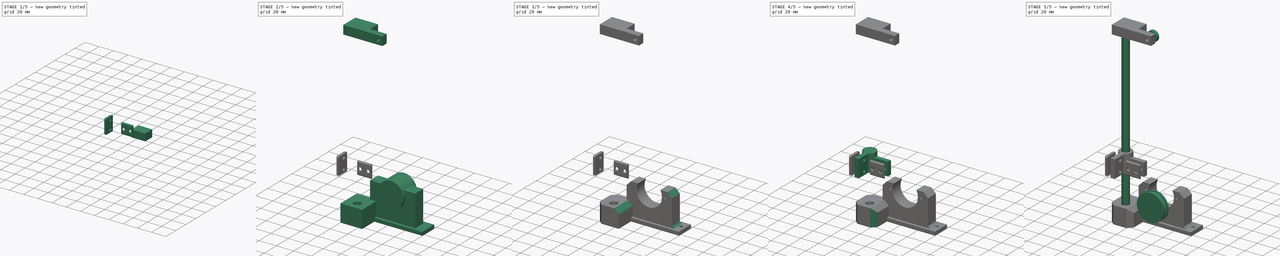
[diagram: build sequence overview — one tinted view per stage of 5, left to right]
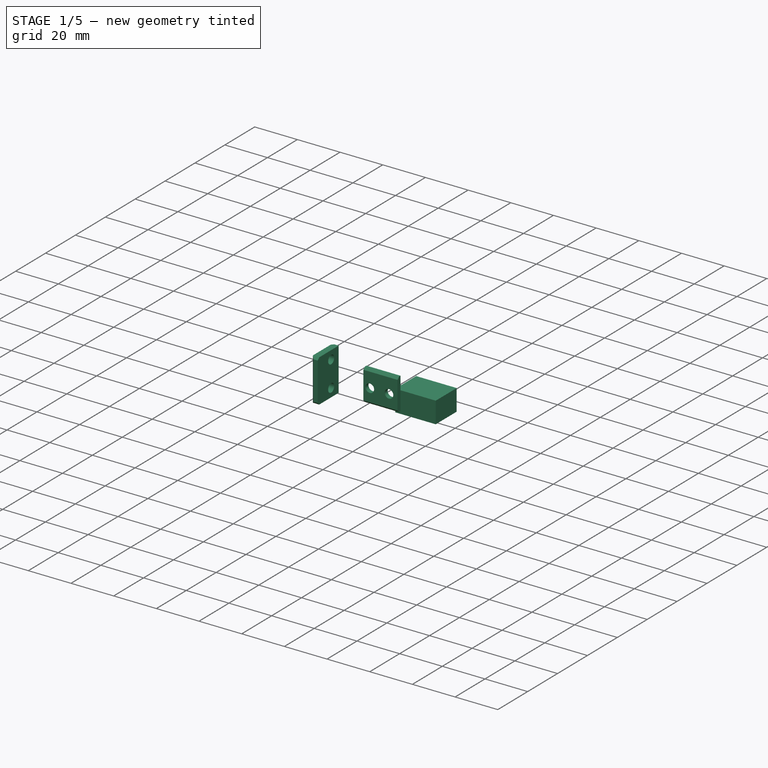
[diagram: stage 1 of 5 — iso view after this stage's code; geometry added in this stage tinted green]
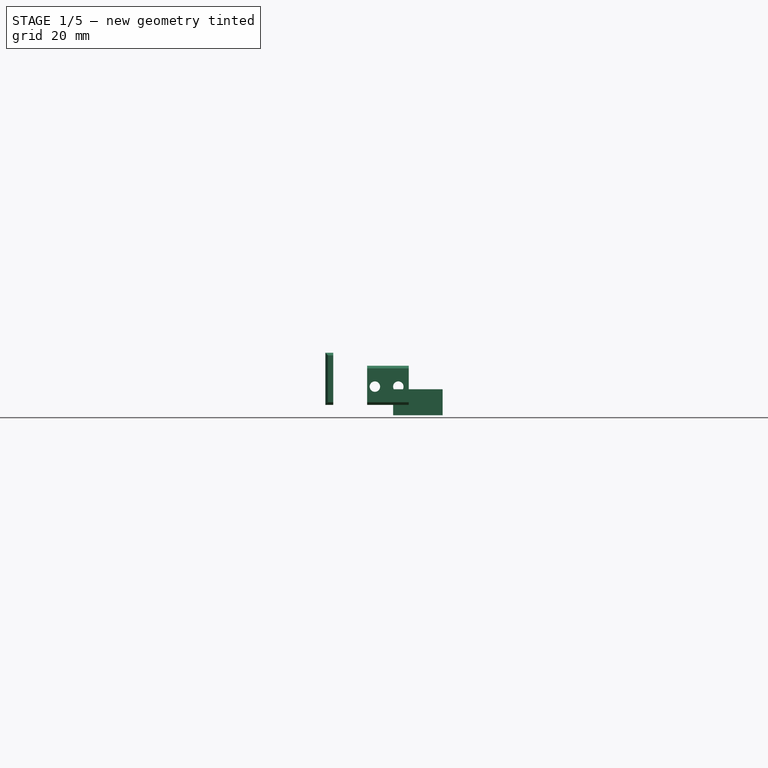
[diagram: stage 1 of 5 — front view after this stage's code; geometry added in this stage tinted green]
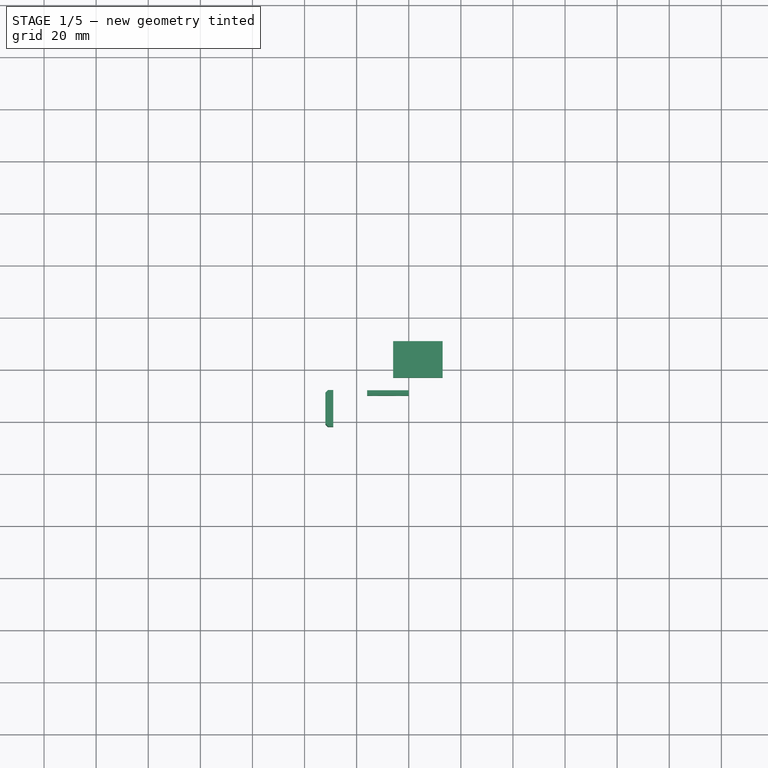
[diagram: stage 1 of 5 — top view after this stage's code; geometry added in this stage tinted green]
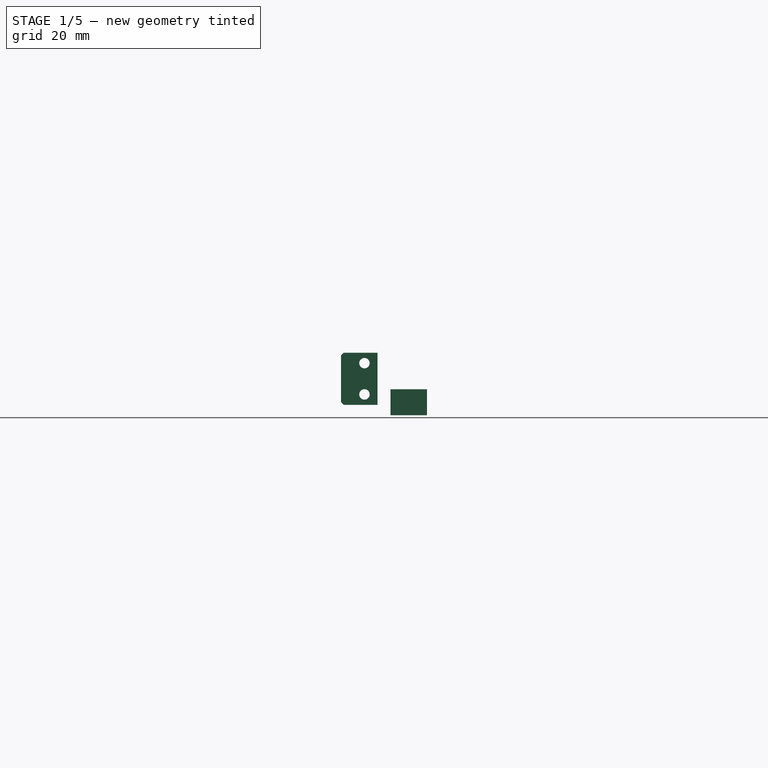
[diagram: stage 1 of 5 — right view after this stage's code; geometry added in this stage tinted green]
FCSTD DOCUMENT  (FreeCAD 0.15R4671 (Git))
Label: apolo_11_v2
License: All rights reserved
LicenseURL: http://es.wikipedia.org/wiki/Todos_los_derechos_reservados
objects: Part::Cylinder×25, Part::Cut×13, Part::Chamfer×13, Part::Box×9, Part::MultiFuse×8, Part::Feature×1, Sketcher::SketchObject×1, Part::Extrusion×1, App::DocumentObjectGroup×1
note: 71 computed .brp shape members not serialized (recipe doc carries the construction recipe); baked Part::Feature solids carry a one-line shape summary decoded from their .brp

FEATURE [Part::Box] Box009  label="Cubo009"
  Height = 10
  Length = 19
  Placement = pos=(74,-43,17) rot=(0,0,1;0rad)
  Width = 14
FEATURE [Part::Box] Box013  label="Cubo013"
  Height = 15
  Length = 16
  Placement = pos=(64,-43,23) rot=(0,0,1;0rad)
  Width = 2
FEATURE [Part::Cylinder] Cylinder051  label="Cilindro048"
  Angle = 360
  Height = 10
  Placement = pos=(67,-37,30) rot=(1,0,0;1.5708rad)
  Radius = 2
FEATURE [Part::Cylinder] Cylinder052  label="Cilindro049"
  Angle = 360
  Height = 10
  Placement = pos=(76,-37,30) rot=(1,0,0;1.5708rad)
  Radius = 2
FEATURE [Part::MultiFuse] Fusion012
  Shapes = -> [Cylinder051,Cylinder052]
FEATURE [Part::Cut] Cut040  label="presa1"
  Base = -> Box013
  Placement = pos=(0,-7,-2) rot=(0,0,1;0rad)
  Tool = -> Fusion012
FEATURE [Part::Box] Box014  label="Cubo014"
  Height = 20
  Length = 14
  Placement = pos=(55,-48,21) rot=(0,0,-1;1.5708rad)
  Width = 3
FEATURE [Part::Cylinder] Cylinder053  label="Cilindro050"
  Angle = 360
  Height = 10
  Placement = pos=(63,-53,25) rot=(0.57735,-0.57735,-0.57735;2.0944rad)
  Radius = 2
FEATURE [Part::Cylinder] Cylinder054  label="Cilindro051"
  Angle = 360
  Height = 10
  Placement = pos=(63,-53,37) rot=(0.57735,-0.57735,-0.57735;2.0944rad)
  Radius = 2
FEATURE [Part::MultiFuse] Fusion013
  Shapes = -> [Cylinder054,Cylinder053]
FEATURE [Part::Cut] Cut041  label="presa2"
  Base = -> Box014
  Placement = pos=(-7,0,0) rot=(0,0,1;0rad)
  Tool = -> Fusion013
FEATURE [Part::Chamfer] Chamfer015
  Base = -> Cut041
  Edges = 2 edges r=1: [Edge11,Edge16]
FEATURE [Part::Chamfer] Chamfer016  label="presa003"
  Base = -> Cut040
  Edges = 2 edges r=1: [Edge5,Edge7]
FEATURE [Part::Chamfer] Chamfer017  label="presa004"
  Base = -> Chamfer015
  Edges = 2 edges r=1: [Edge3,Edge4]
FEATURE [App::DocumentObjectGroup] Grupo003
  Group = -> [Compound003,Cut024,Chamfer005,Cylinder039,Cut034,Chamfer014,Cut039,Chamfer016,Chamfer017]
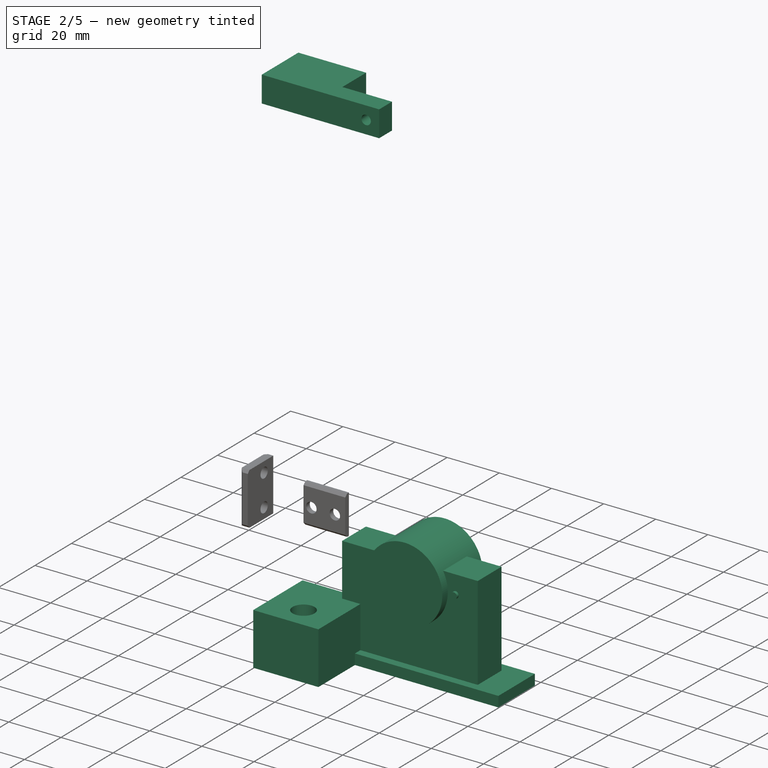
[diagram: stage 2 of 5 — iso view after this stage's code; geometry added in this stage tinted green]
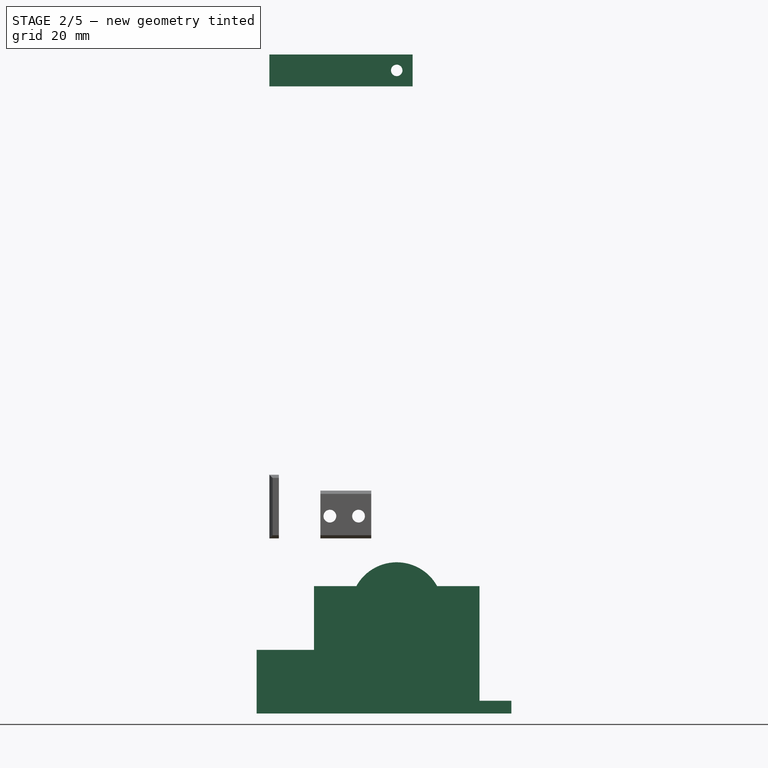
[diagram: stage 2 of 5 — front view after this stage's code; geometry added in this stage tinted green]
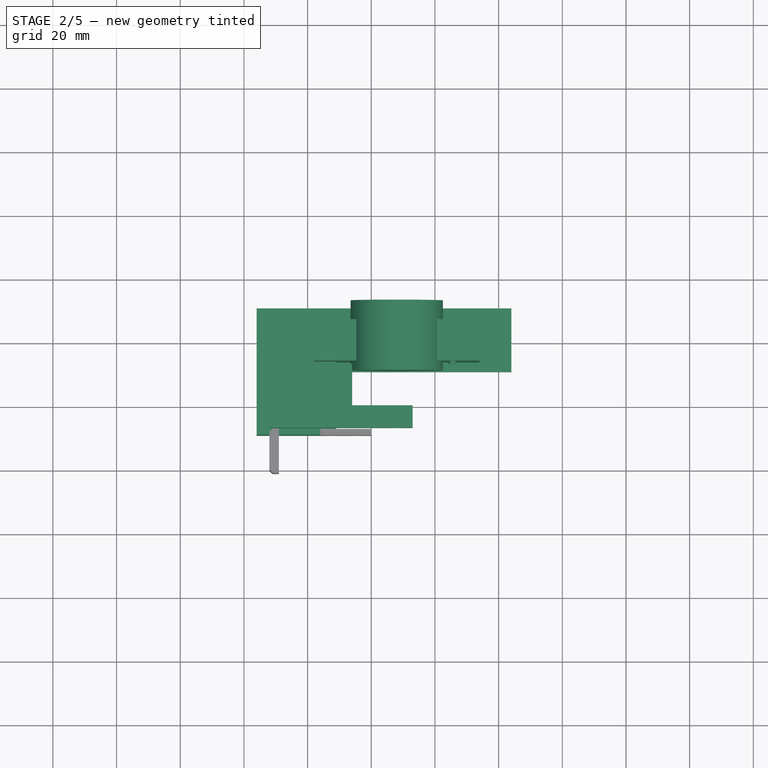
[diagram: stage 2 of 5 — top view after this stage's code; geometry added in this stage tinted green]
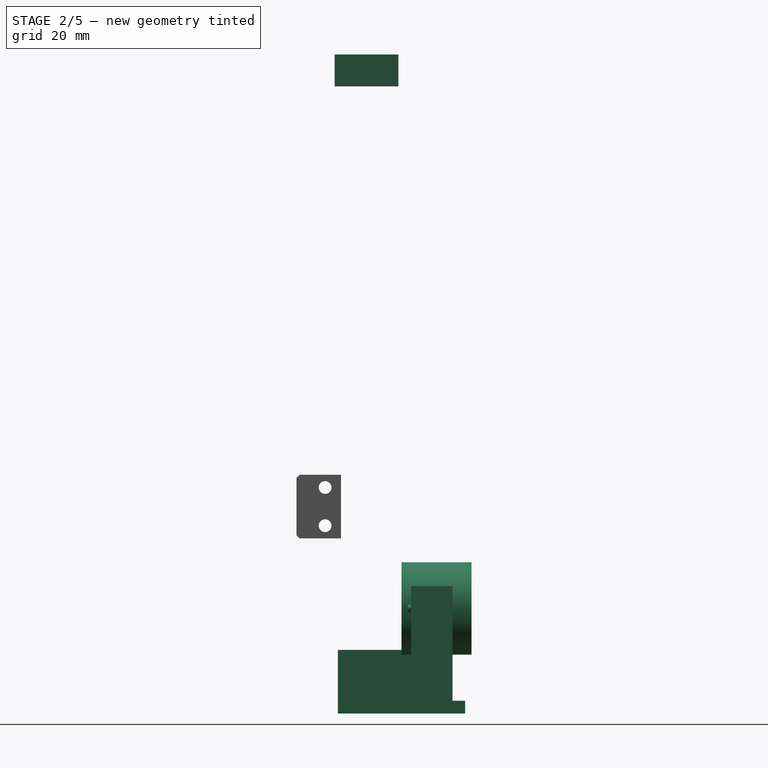
[diagram: stage 2 of 5 — right view after this stage's code; geometry added in this stage tinted green]
FEATURE [Part::Box] Box006  label="Cubo006"
  Height = 40
  Length = 52
  Placement = pos=(62,-26,-34) rot=(0,0,1;0rad)
  Width = 13
FEATURE [Part::Box] Box007  label="Cubo007"
  Height = 20
  Length = 25
  Placement = pos=(44,-49,-34) rot=(0,0,1;0rad)
  Width = 27
FEATURE [Part::Cylinder] Cylinder035  label="Cilindro032"
  Angle = 360
  Height = 200
  Placement = pos=(57,-40,-29) rot=(0,0,1;0rad)
  Radius = 4.2
FEATURE [Part::Cut] Cut028
  Base = -> Box007
  Tool = -> Cylinder035
FEATURE [Part::Box] Box008  label="Cubo008"
  Height = 10
  Length = 45
  Placement = pos=(48,-50,17) rot=(0,0,1;0rad)
  Width = 20
FEATURE [Part::Cylinder] Cylinder037  label="Cilindro034"
  Angle = 360
  Height = 21
  Placement = pos=(88,-32,22) rot=(1,0,0;1.5708rad)
  Radius = 1.8
FEATURE [Part::Cylinder] Cylinder040  label="Cilindro037"
  Angle = 360
  Height = 200
  Placement = pos=(57,-40,-29) rot=(0,0,1;0rad)
  Radius = 4.2
FEATURE [Part::Box] Box012  label="Cubo012"
  Height = 4
  Length = 80
  Placement = pos=(44,-29,-34) rot=(0,0,1;0rad)
  Width = 20
FEATURE [Part::Cylinder] Cylinder049  label="Cilindro046"
  Angle = 360
  Height = 10
  Placement = pos=(105.5,-17,-1) rot=(1,0,0;1.5708rad)
  Radius = 1.2
FEATURE [Part::MultiFuse] Fusion011
  Shapes = -> [Cut028,Box006,Box012]
FEATURE [Part::Cylinder] Cylinder050  label="Cilindro047"
  Angle = 360
  Height = 22
  Placement = pos=(88,-7,-1) rot=(1,0,0;1.5708rad)
  Radius = 14.5
FEATURE [Part::Cut] Cut037
  Base = -> Box008
  Tool = -> Box009
FEATURE [Part::Cut] Cut038
  Base = -> Cut037
  Placement = pos=(0,0,146) rot=(0,0,1;0rad)
  Tool = -> Cylinder037
FEATURE [Part::Cut] Cut039  label="parte superior"
  Base = -> Cut038
  Tool = -> Cylinder040
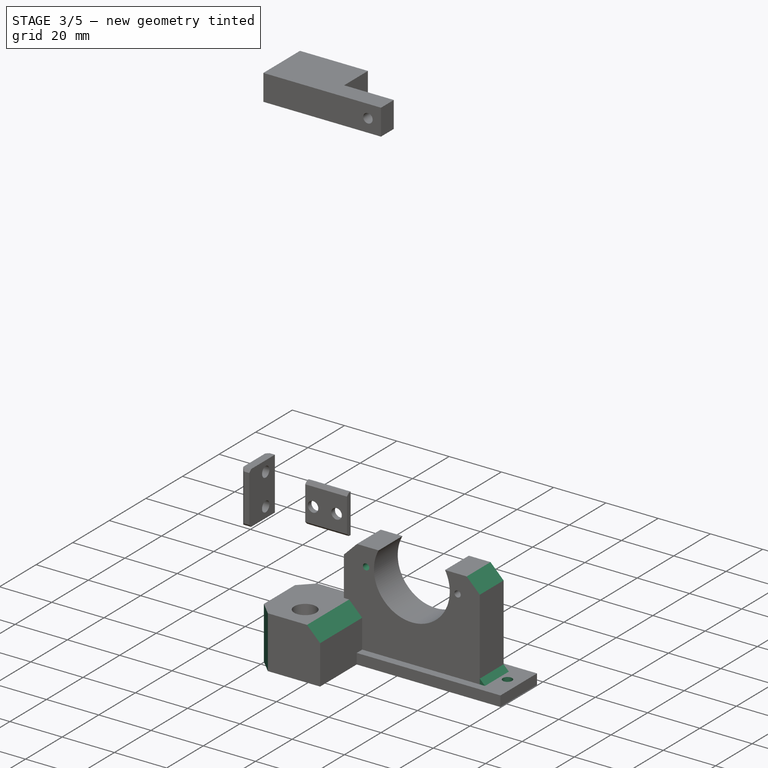
[diagram: stage 3 of 5 — iso view after this stage's code; geometry added in this stage tinted green]
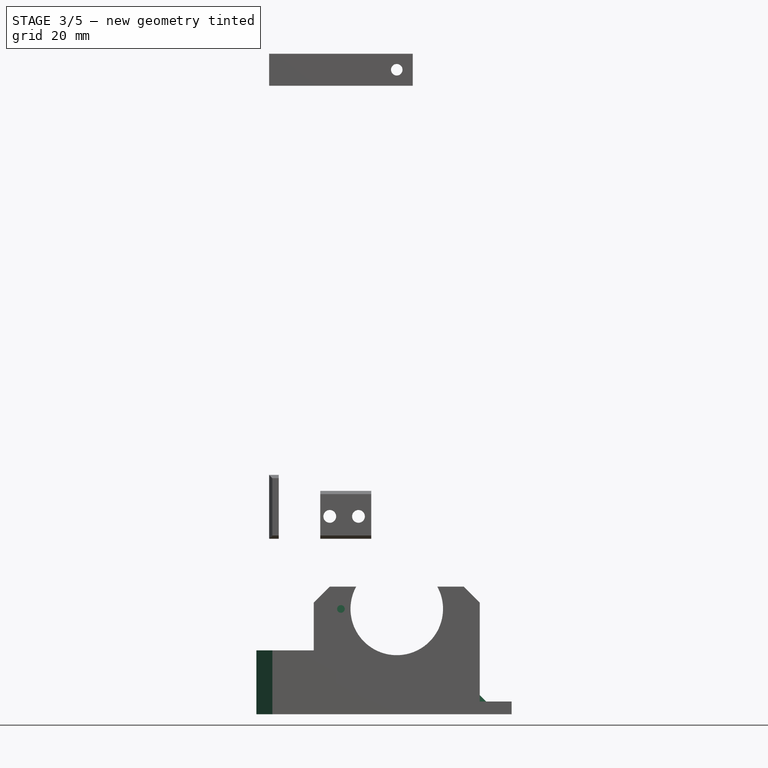
[diagram: stage 3 of 5 — front view after this stage's code; geometry added in this stage tinted green]
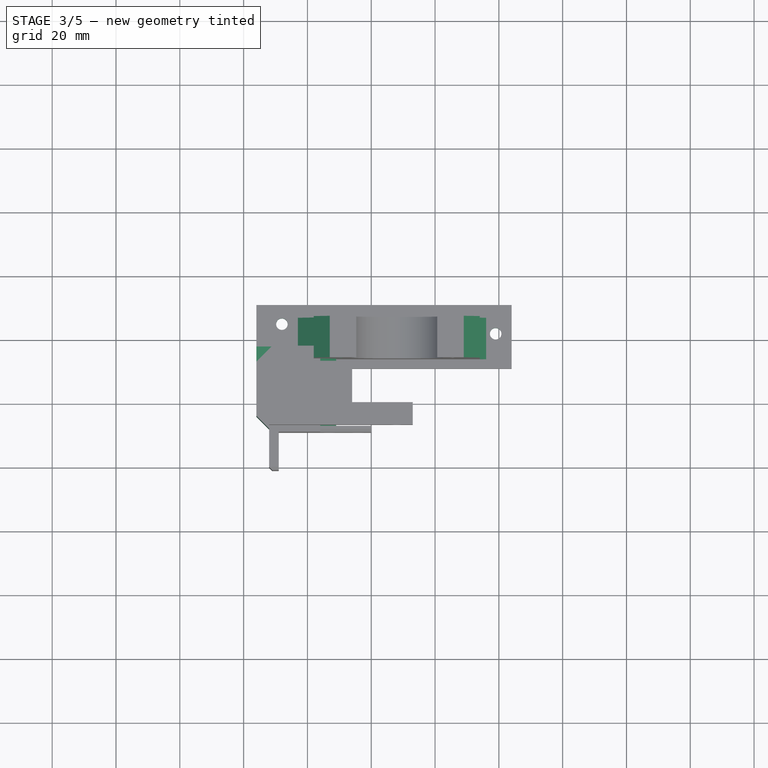
[diagram: stage 3 of 5 — top view after this stage's code; geometry added in this stage tinted green]
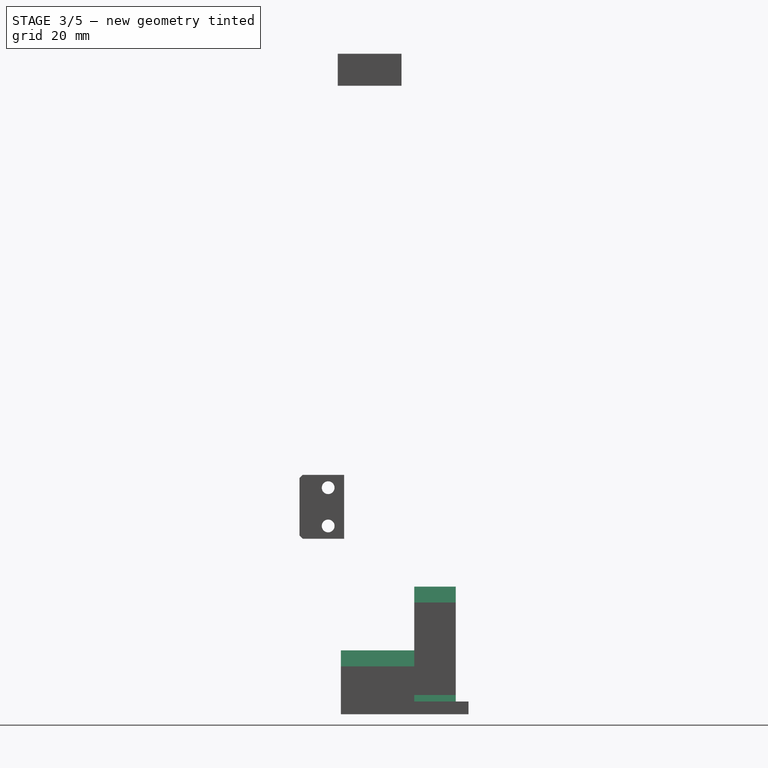
[diagram: stage 3 of 5 — right view after this stage's code; geometry added in this stage tinted green]
FEATURE [Part::Cylinder] Cylinder046  label="Cilindro043"
  Angle = 360
  Height = 10
  Placement = pos=(119,-18,-35) rot=(0,0,1;0rad)
  Radius = 1.8
FEATURE [Part::Cylinder] Cylinder047  label="Cilindro044"
  Angle = 360
  Height = 10
  Placement = pos=(52,-15,-35) rot=(0,0,1;0rad)
  Radius = 1.8
FEATURE [Part::Cylinder] Cylinder048  label="Cilindro045"
  Angle = 360
  Height = 10
  Placement = pos=(70.5,-17,-1) rot=(1,0,0;1.5708rad)
  Radius = 1.2
FEATURE [Part::MultiFuse] Fusion010
  Shapes = -> [Cylinder046,Cylinder047,Cylinder048,Cylinder049]
FEATURE [Part::Cut] Cut035
  Base = -> Fusion011
  Tool = -> Fusion010
FEATURE [Part::Cut] Cut036
  Base = -> Cut035
  Tool = -> Cylinder050
FEATURE [Part::Chamfer] Chamfer007
  Base = -> Cut036
  Edges = 1 edges r=5: [Edge32]
FEATURE [Part::Chamfer] Chamfer008
  Base = -> Chamfer007
  Edges = 1 edges r=5: [Edge40]
FEATURE [Part::Chamfer] Chamfer009
  Base = -> Chamfer008
  Edges = 1 edges r=2: [Edge8]
FEATURE [Part::Chamfer] Chamfer010
  Base = -> Chamfer009
  Edges = 1 edges r=5: [Edge39]
FEATURE [Part::Chamfer] Chamfer011
  Base = -> Chamfer010
  Edges = 1 edges r=5: [Edge27]
FEATURE [Part::Chamfer] Chamfer012
  Base = -> Chamfer011
  Edges = 1 edges r=5: [Edge52]
FEATURE [Part::Chamfer] Chamfer013
  Base = -> Chamfer012
  Edges = 1 edges r=5: [Edge46]
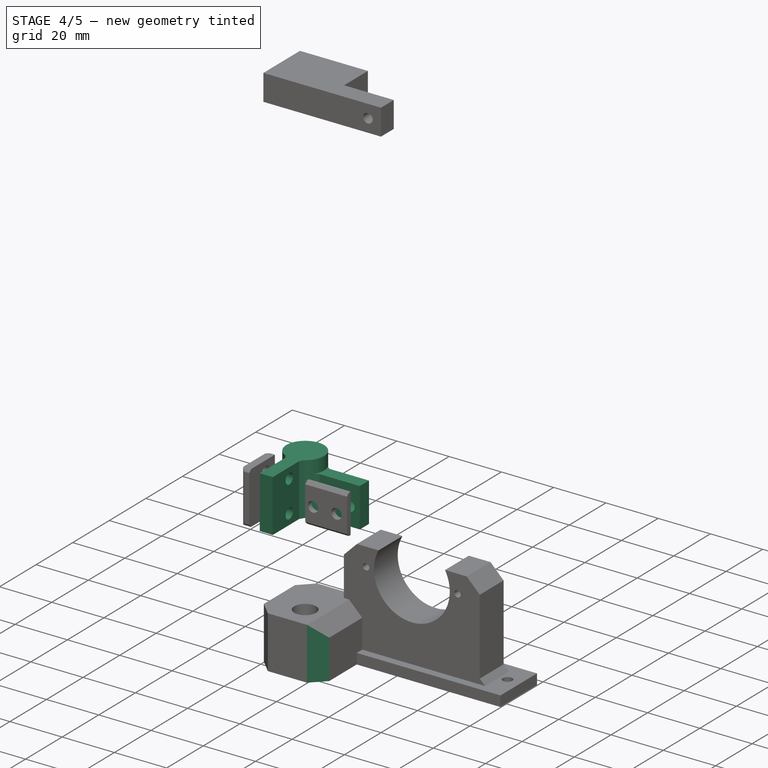
[diagram: stage 4 of 5 — iso view after this stage's code; geometry added in this stage tinted green]
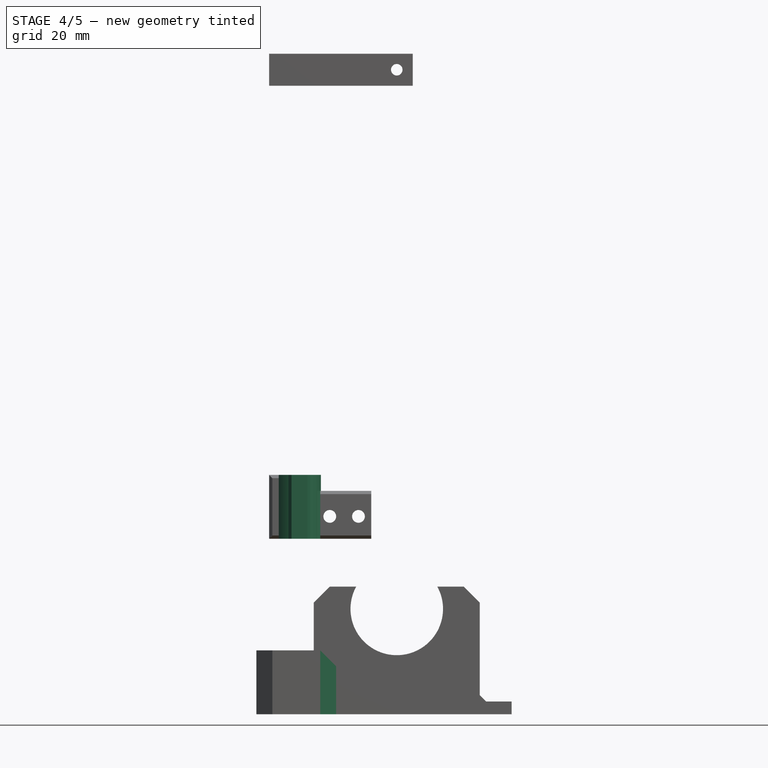
[diagram: stage 4 of 5 — front view after this stage's code; geometry added in this stage tinted green]
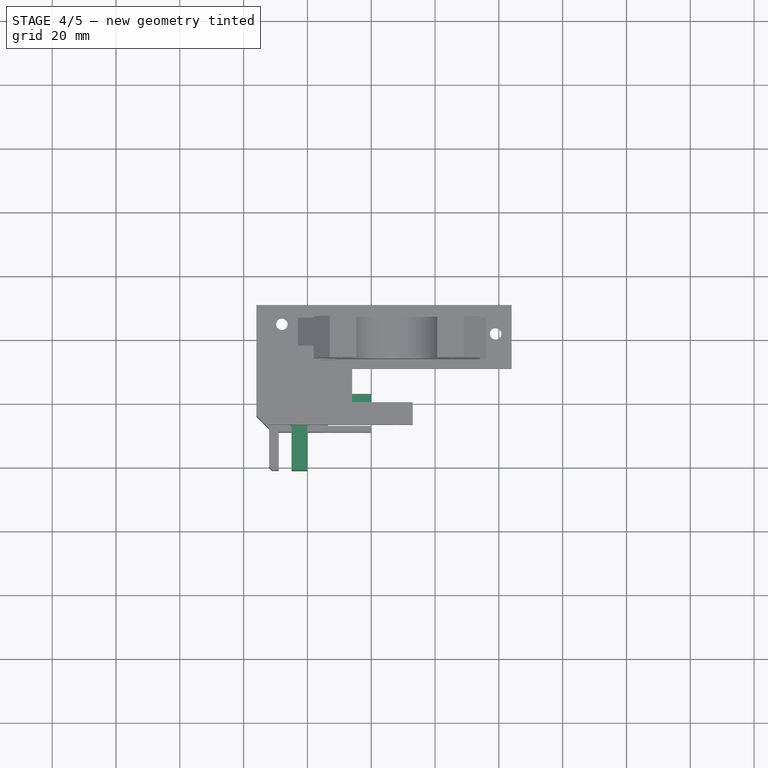
[diagram: stage 4 of 5 — top view after this stage's code; geometry added in this stage tinted green]
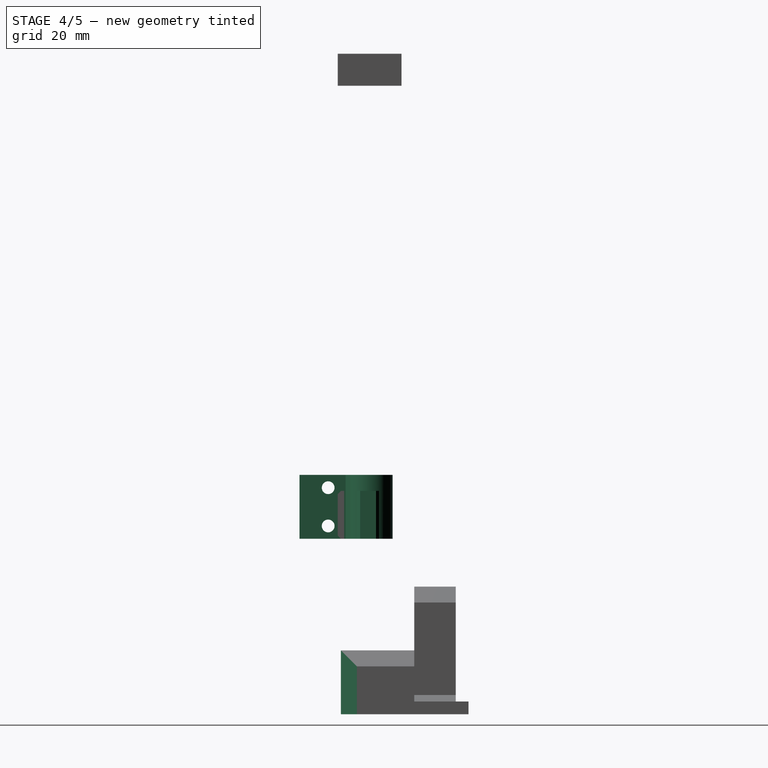
[diagram: stage 4 of 5 — right view after this stage's code; geometry added in this stage tinted green]
FEATURE [Part::Cylinder] Cylinder041  label="Cilindro038"
  Angle = 360
  Height = 20
  Placement = pos=(57,-40,21) rot=(0,0,1;0rad)
  Radius = 7.2
FEATURE [Part::Box] Box010  label="Cubo010"
  Height = 15
  Length = 24
  Placement = pos=(56,-43,23) rot=(0,0,1;0rad)
  Width = 5
FEATURE [Part::Cylinder] Cylinder042  label="Cilindro039"
  Angle = 360
  Height = 10
  Placement = pos=(67,-37,30) rot=(1,0,0;1.5708rad)
  Radius = 2
FEATURE [Part::Cylinder] Cylinder043  label="Cilindro040"
  Angle = 360
  Height = 10
  Placement = pos=(76,-37,30) rot=(1,0,0;1.5708rad)
  Radius = 2
FEATURE [Part::MultiFuse] Fusion007
  Shapes = -> [Cylinder042,Cylinder043]
FEATURE [Part::Cut] Cut032
  Base = -> Box010
  Placement = pos=(0,0,-2) rot=(0,0,1;0rad)
  Tool = -> Fusion007
FEATURE [Part::Box] Box011  label="Cubo011"
  Height = 20
  Length = 19
  Placement = pos=(55,-43,21) rot=(0,0,-1;1.5708rad)
  Width = 5
FEATURE [Part::Cylinder] Cylinder044  label="Cilindro041"
  Angle = 360
  Height = 10
  Placement = pos=(63,-53,25) rot=(0.57735,-0.57735,-0.57735;2.0944rad)
  Radius = 2
FEATURE [Part::Cylinder] Cylinder045  label="Cilindro042"
  Angle = 360
  Height = 10
  Placement = pos=(63,-53,37) rot=(0.57735,-0.57735,-0.57735;2.0944rad)
  Radius = 2
FEATURE [Part::MultiFuse] Fusion008
  Shapes = -> [Cylinder045,Cylinder044]
FEATURE [Part::Cut] Cut033
  Base = -> Box011
  Tool = -> Fusion008
FEATURE [Part::MultiFuse] Fusion009
  Shapes = -> [Cylinder041,Cut032,Cut033]
FEATURE [Part::Chamfer] Chamfer006
  Base = -> Fusion009
  Edges = 4 edges r=1: [Edge8,Edge14,Edge26,Edge32]
FEATURE [Part::Chamfer] Chamfer014  label="base motor"
  Base = -> Chamfer013
  Edges = 1 edges r=5: [Edge70]
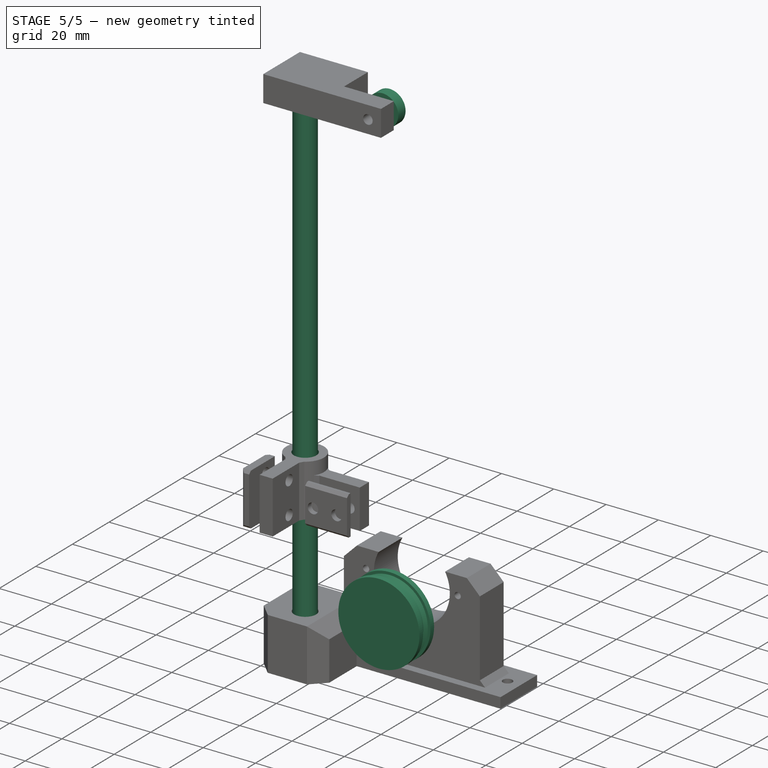
[diagram: stage 5 of 5 — iso view after this stage's code; geometry added in this stage tinted green]
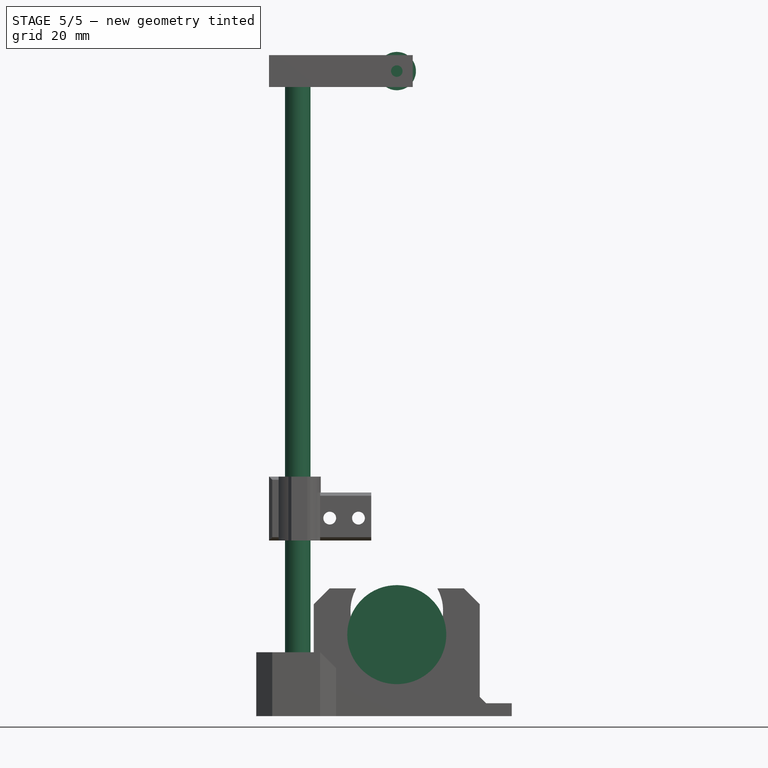
[diagram: stage 5 of 5 — front view after this stage's code; geometry added in this stage tinted green]
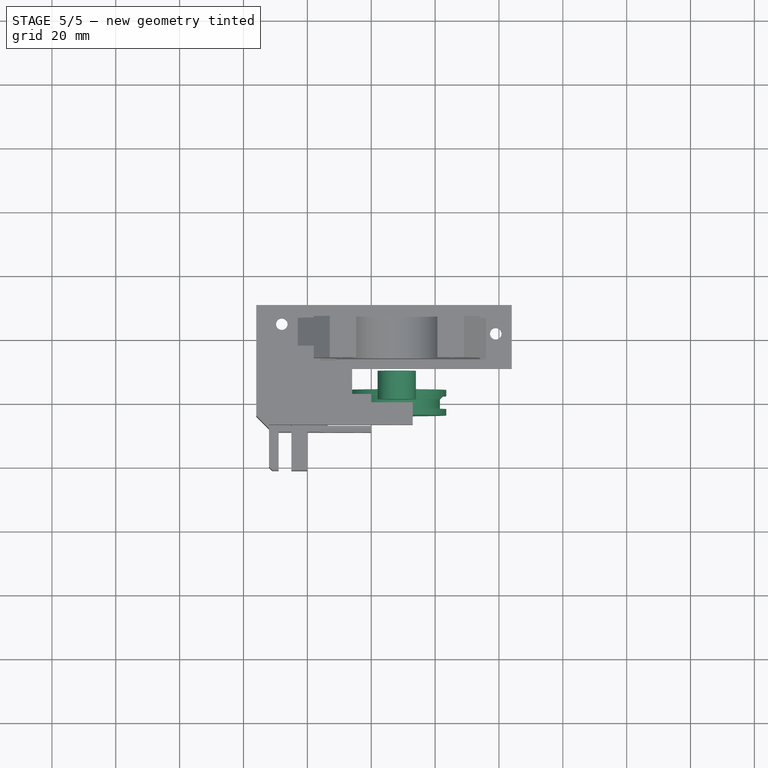
[diagram: stage 5 of 5 — top view after this stage's code; geometry added in this stage tinted green]
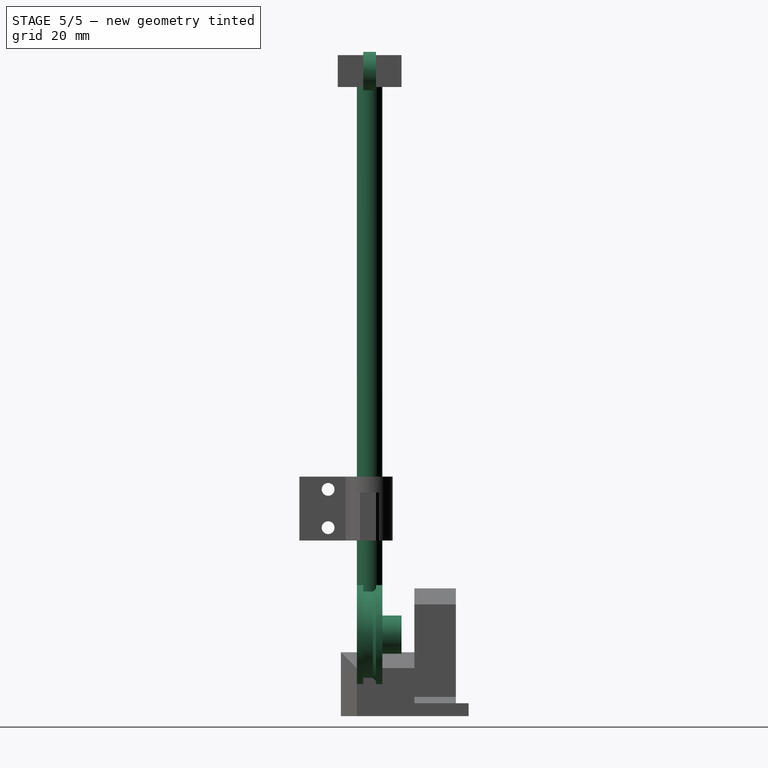
[diagram: stage 5 of 5 — right view after this stage's code; geometry added in this stage tinted green]
FEATURE [Part::Cylinder] Cylinder016  label="Cilindro016"
  Angle = 360
  Height = 200
  Placement = pos=(0,-24,9) rot=(0,0,1;0rad)
  Radius = 4
FEATURE [Part::Cylinder] Cylinder017  label="Cilindro017"
  Angle = 360
  Height = 200
  Placement = pos=(0,-24,9) rot=(0,0,1;0rad)
  Radius = 3
FEATURE [Part::Feature] Compound003  label="28BYJ-48 final005"
  Placement = pos=(88,-7,-1) rot=(0,-0.707107,0.707107;3.14159rad)
  shape: bbox 42 x 29 x 31 mm, 57 faces, 3 solids (baked)
FEATURE [Part::Cut] Cut024  label="tubo_fijacion003"
  Base = -> Cylinder016
  Placement = pos=(57,-16,-38) rot=(0,0,1;0rad)
  Tool = -> Cylinder017
FEATURE [Part::Cylinder] Cylinder031  label="Cilindro028"
  Angle = 360
  Height = 14
  Placement = pos=(-1,25,24) rot=(0,0,1;0rad)
  Radius = 6
FEATURE [Part::Cylinder] Cylinder032  label="Cilindro029"
  Angle = 360
  Height = 5
  Placement = pos=(-1,25,31) rot=(0,0,1;0rad)
  Radius = 13.5
FEATURE [Sketcher::SketchObject] Sketch001
  sketch-geometry (4):
    g0: LineSegment StartX=-2.06009 StartY=8.6 StartZ=0 EndX=2 EndY=8.6 EndZ=0
    g1: LineSegment StartX=2 StartY=5.40416 StartZ=0 EndX=-2.06009 EndY=5.40416 EndZ=0
    g2: ArcOfCircle CenterX=-0.198862 CenterY=7.00208 CenterZ=0 NormalX=0 NormalY=0 NormalZ=1 Radius=2.45306 StartAngle=2.43217 EndAngle=3.85102
    g3: ArcOfCircle CenterX=0.166667 CenterY=7.00208 CenterZ=0 NormalX=0 NormalY=0 NormalZ=1 Radius=2.43197 StartAngle=5.56629 EndAngle=7.00008
  constraints (5):
    c: Horizontal(g0)
    c: Horizontal(g1)
    c: Coincident(g2,g0)
    c: Coincident(g2,g1)
    c: Coincident(g3,g0)
FEATURE [Part::Extrusion] Extrude001
  Base = -> Sketch001
  Dir = (0,0,7)
  Placement = pos=(-1,18,24) rot=(0,0,1;0rad)
  Solid = true
FEATURE [Part::Cut] Cut027
  Base = -> Cylinder031
  Tool = -> Extrude001
FEATURE [Part::Cylinder] Cylinder033  label="Cilindro030"
  Angle = 360
  Height = 2
  Placement = pos=(-1,25,36) rot=(0,0,1;0rad)
  Radius = 15.5
FEATURE [Part::Cylinder] Cylinder034  label="Cilindro031"
  Angle = 360
  Height = 2
  Placement = pos=(-1,25,30) rot=(0,0,1;0rad)
  Radius = 15.5
FEATURE [Part::MultiFuse] Fusion005
  Shapes = -> [Cut027,Cylinder033,Cylinder032,Cylinder034]
FEATURE [Part::Chamfer] Chamfer005  label="polea motor"
  Base = -> Fusion005
  Edges = 1 edges r=1: [Edge4]
  Placement = pos=(89,-6,-33.5) rot=(1,0,0;1.5708rad)
FEATURE [Part::Cylinder] Cylinder036  label="Cilindro033"
  Angle = 360
  Height = 200
  Placement = pos=(57,-40,-29) rot=(0,0,1;0rad)
  Radius = 4.3
FEATURE [Part::Cylinder] Cylinder039  label="cojinete superior"
  Angle = 360
  Height = 4
  Placement = pos=(88,-38,168) rot=(1,0,0;1.5708rad)
  Radius = 6
FEATURE [Part::Cut] Cut034  label="rodamiento lineal"
  Base = -> Chamfer006
  Tool = -> Cylinder036
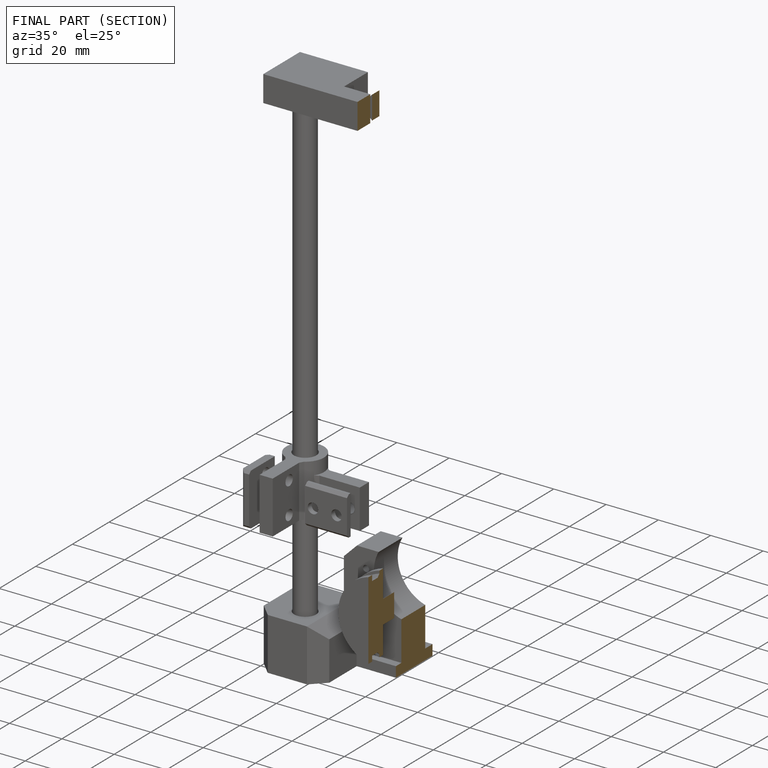
[diagram: finished part — half-section view (interior)]
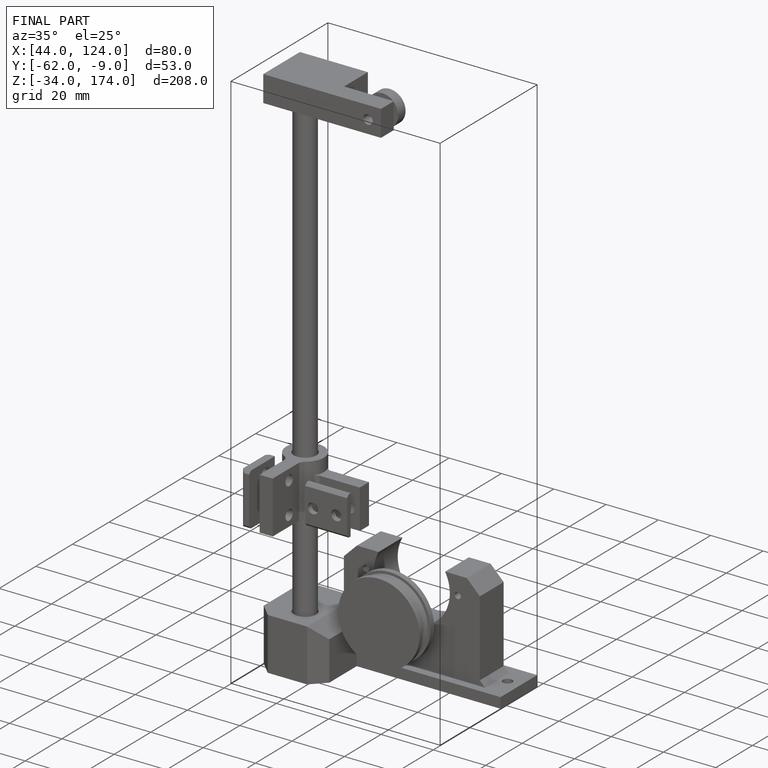
[diagram: finished part — iso view with bounding-box wireframe]
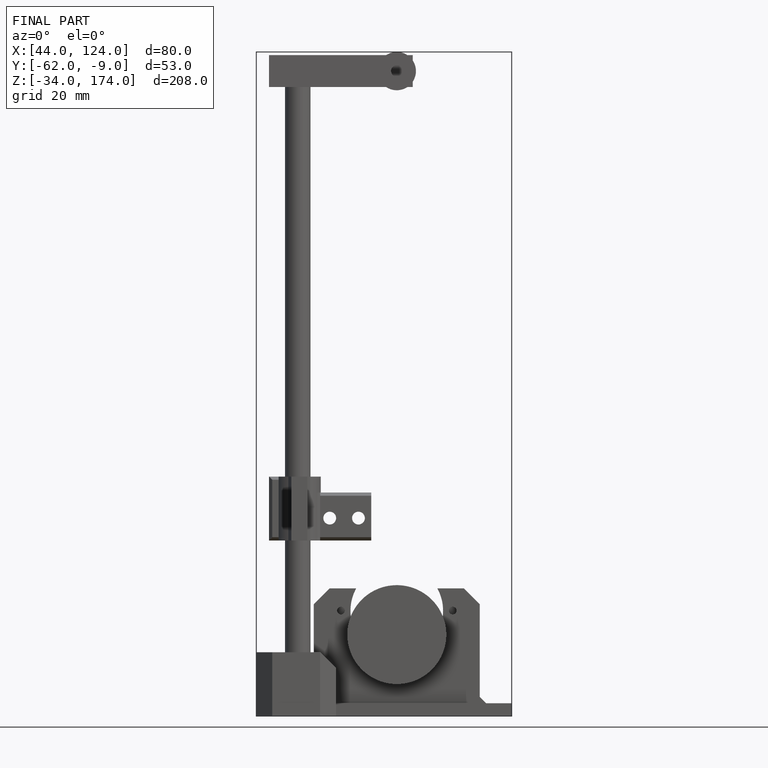
[diagram: finished part — front view with bounding-box wireframe]
